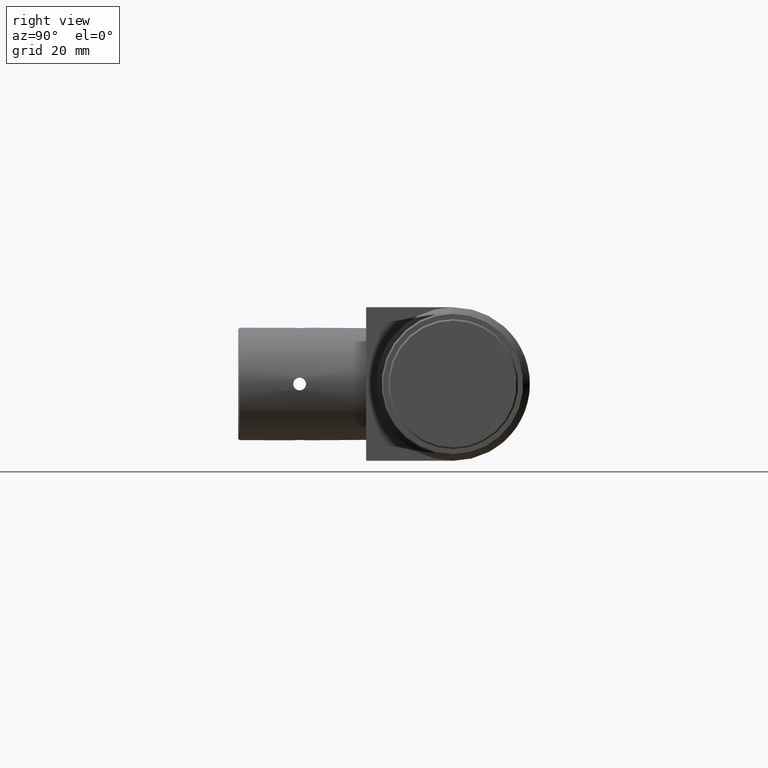
[diagram: clean part render]
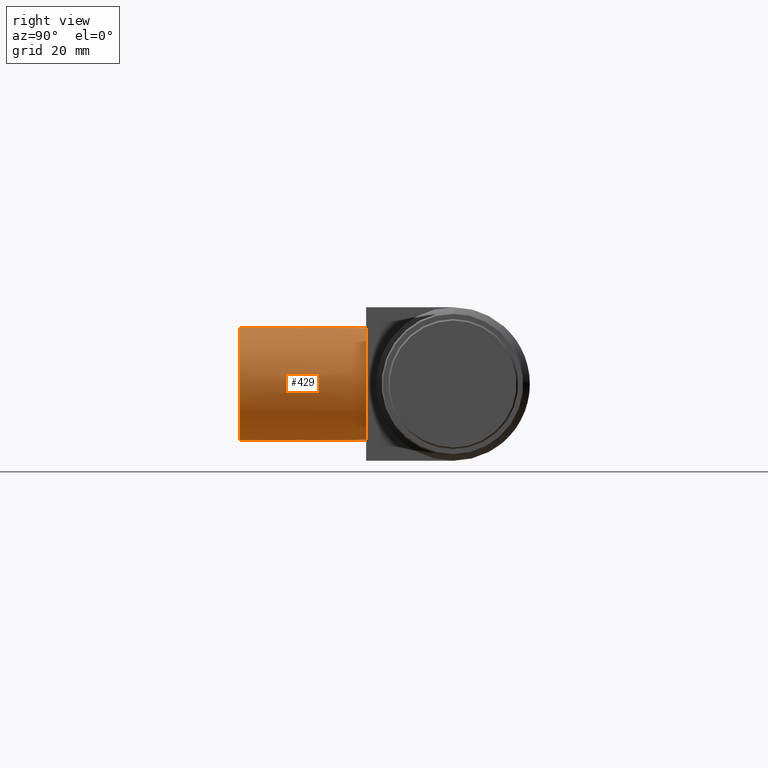
[diagram: same view with one face highlighted and labeled with its STEP entity id]
A machine part, right view. The second image highlights one B-rep face of the part: STEP entity #429.
In plain terms, the highlighted cylindrical surface (bore or boss wall) has radius 11 mm, axis along (-0, 1, 0).
Its self-contained STEP definition (entity closure, byte-faithful):
#8 = CARTESIAN_POINT ( 'NONE',  ( 57.32874691992438443, -30.16523649861752432, -1.249996304105803313 ) ) ;
#18 = CARTESIAN_POINT ( 'NONE',  ( 47.65000000000001279, -30.00000000000000711, -10.92874649719719038 ) ) ;
#31 = CARTESIAN_POINT ( 'NONE',  ( 57.35512509670665082, -30.76840601447571188, -0.9992852210899698662 ) ) ;
#38 = CARTESIAN_POINT ( 'NONE',  ( 57.37369036873785433, -30.99878037001180431, -0.7690621097481870061 ) ) ;
#39 = CARTESIAN_POINT ( 'NONE',  ( 47.49191374778500574, -29.36987058394471362, -10.94585336944215470 ) ) ;
#51 = VERTEX_POINT ( 'NONE', #998 ) ;
#53 = CARTESIAN_POINT ( 'NONE',  ( 47.16866174508813003, -29.00089940282909495, -10.97371939403145191 ) ) ;
#67 = CARTESIAN_POINT ( 'NONE',  ( 35.47125392545656553, -30.16518057563349231, -1.250003695269235937 ) ) ;
#68 = CARTESIAN_POINT ( 'NONE',  ( 45.99813204940214462, -28.81352911131221006, -10.99291791976997246 ) ) ;
#73 = CARTESIAN_POINT ( 'NONE',  ( 35.40382933267786569, -31.21743884811908742, -0.3273496826802421156 ) ) ;
#74 = CARTESIAN_POINT ( 'NONE',  ( 47.40003137385470922, -30.76788954005089138, -10.95507426899692938 ) ) ;
#80 = CARTESIAN_POINT ( 'NONE',  ( 45.30828834823177687, -29.36952018964126054, -10.94587381075847077 ) ) ;
#88 = CARTESIAN_POINT ( 'NONE',  ( 45.30808752390574057, -29.36986847184140714, 10.94585349747341851 ) ) ;
#107 = EDGE_LOOP ( 'NONE', ( #702 ) ) ;
#120 = CARTESIAN_POINT ( 'NONE',  ( 57.37369157730482527, -29.00120630925291110, 0.7690454277273465200 ) ) ;
#126 = CARTESIAN_POINT ( 'NONE',  ( 57.39999999999997016, -31.25000000000000711, 1.382357769919018153E-15 ) ) ;
#132 = CARTESIAN_POINT ( 'NONE',  ( 47.61731150413277902, -29.67214067730426308, 10.93261819251236489 ) ) ;
#136 = EDGE_LOOP ( 'NONE', ( #399 ) ) ;
#138 = CARTESIAN_POINT ( 'NONE',  ( 45.77066527709941823, -28.90778430875120364, 10.98301358786107151 ) ) ;
#147 = CARTESIAN_POINT ( 'NONE',  ( 35.39999944251255215, -31.25000490588956836, 0.1651726352096185291 ) ) ;
#157 = CARTESIAN_POINT ( 'NONE',  ( 35.46739675995540608, -30.32734344424192585, 1.217440567082311409 ) ) ;
#164 = CARTESIAN_POINT ( 'NONE',  ( 35.40000055761273501, -31.24999509300798195, -0.1652468808359598140 ) ) ;
#165 = CARTESIAN_POINT ( 'NONE',  ( 46.56356424380434333, -31.24194578641280984, -10.99907625233640118 ) ) ;
#171 = CARTESIAN_POINT ( 'NONE',  ( 47.02933581457664758, -28.90778489191913181, -10.98301352857973257 ) ) ;
#180 = CARTESIAN_POINT ( 'NONE',  ( 46.48068588888168762, -31.25005821771271286, -11.00000661564748405 ) ) ;
#185 = CARTESIAN_POINT ( 'NONE',  ( 45.15000049632214285, -29.83470918015473572, 10.92874655396517447 ) ) ;
#204 = CARTESIAN_POINT ( 'NONE',  ( 57.37373593884807121, -29.00072740950901462, -0.7684227986129689159 ) ) ;
#219 = CARTESIAN_POINT ( 'NONE',  ( 57.33267669630473762, -29.67067927638482061, -1.216766291996357552 ) ) ;
#223 = CARTESIAN_POINT ( 'NONE',  ( 46.80186721714293441, -28.81352887404932872, 10.99291794571075265 ) ) ;
#233 = CARTESIAN_POINT ( 'NONE',  ( 35.41701718177204583, -28.90809088857670162, -0.6298465923763797436 ) ) ;
#244 = VERTEX_POINT ( 'NONE', #630 ) ;
#245 = CARTESIAN_POINT ( 'NONE',  ( 35.46732315259926338, -29.67067319058544683, 1.216765051851185442 ) ) ;
#255 = CARTESIAN_POINT ( 'NONE',  ( 46.31931395672849305, -31.25005821782326265, 11.00000661566004290 ) ) ;
#260 = CARTESIAN_POINT ( 'NONE',  ( 35.45414928931290888, -30.62982551053984182, -1.091921322538428774 ) ) ;
#261 = CARTESIAN_POINT ( 'NONE',  ( 46.07607919561785081, -31.21006526087888489, 10.99552213412518320 ) ) ;
#263 = EDGE_CURVE ( 'NONE', #694, #694, #269, .T. ) ;
#265 = DIRECTION ( 'NONE',  ( -1.000000000000000000, -1.306036860466260568E-16, 0.000000000000000000 ) ) ;
#268 = CARTESIAN_POINT ( 'NONE',  ( 45.18258419316644137, -30.32747114605952632, -10.93260629478959878 ) ) ;
#269 = B_SPLINE_CURVE_WITH_KNOTS ( 'NONE', 3,
 ( #632, #792, #525, #39, #420, #53, #171, #1017, #1037, #1124, #848, #555, #68, #449, #841, #931, #80, #548, #730, #468, #268, #652, #1230, #639, #1023, #455, #833, #180, #165, #1117, #659, #378, #569, #74, #1110, #1215, #363, #922 ),
 .UNSPECIFIED., .T., .F.,
 ( 4, 2, 2, 2, 2, 2, 2, 2, 2, 2, 2, 2, 2, 2, 2, 2, 2, 2, 4 ),
 ( 0.000000000000000000, 0.0004887933009349074804, 0.0009775866018698149609, 0.001466379902804722333, 0.001955173203739629922, 0.002199569854207094124, 0.002443966504674557894, 0.002932759805609508851, 0.003421553106544459807, 0.003910346407479410764, 0.004399139708414361721, 0.004887933009349311811, 0.005376726310284262768, 0.005865519611219213725, 0.006109916261686679229, 0.006354312912154144732, 0.006843106213089089618, 0.007331899514024035371, 0.007820692814958981123 ),
 .UNSPECIFIED. ) ;
#273 = AXIS2_PLACEMENT_3D ( 'NONE', #1026, #1045, #947 ) ;
#277 = CARTESIAN_POINT ( 'NONE',  ( 45.14999950368910930, -30.16528331295861776, 10.92874644043053323 ) ) ;
#282 = EDGE_CURVE ( 'NONE', #970, #970, #992, .T. ) ;
#285 = CARTESIAN_POINT ( 'NONE',  ( 57.38299523624985454, -31.09204950158702019, 0.6298763293659139784 ) ) ;
#329 = CARTESIAN_POINT ( 'NONE',  ( 57.39609704690399639, -31.21675970801556588, -0.3293448807668990508 ) ) ;
#333 = CARTESIAN_POINT ( 'NONE',  ( 46.23593742171766507, -28.75011740081319545, 10.99998665900188755 ) ) ;
#335 = CARTESIAN_POINT ( 'NONE',  ( 46.40000000000000568, -41.69999999999992468, 0.000000000000000000 ) ) ;
#337 = ORIENTED_EDGE ( 'NONE', *, *, #964, .T. ) ;
#344 = CARTESIAN_POINT ( 'NONE',  ( 35.40000000000000568, -28.75000000000001066, -4.201283418381329682E-16 ) ) ;
#348 = CARTESIAN_POINT ( 'NONE',  ( 46.48068588888168762, -28.74994178228730846, 11.00000661564748405 ) ) ;
#351 = CARTESIAN_POINT ( 'NONE',  ( 45.99813204940214462, -31.18647088868779349, 10.99291791976997246 ) ) ;
#356 = CARTESIAN_POINT ( 'NONE',  ( 35.46739691633692360, -29.67266281084246060, -1.217441855151542685 ) ) ;
#357 = CARTESIAN_POINT ( 'NONE',  ( 46.56406288705149876, -31.24988259896575116, 10.99998665897675920 ) ) ;
#362 = CARTESIAN_POINT ( 'NONE',  ( 35.42630963126215704, -29.00121962998827030, -0.7690621097481721291 ) ) ;
#363 = CARTESIAN_POINT ( 'NONE',  ( 47.65000000000001279, -30.16528746445562348, -10.92874649719719038 ) ) ;
#364 = ORIENTED_EDGE ( 'NONE', *, *, #499, .T. ) ;
#366 = FACE_OUTER_BOUND ( 'NONE', #1132, .T. ) ;
#369 = CARTESIAN_POINT ( 'NONE',  ( 45.63343297007446608, -31.00104553956278508, 10.97388217454267334 ) ) ;
#377 = CARTESIAN_POINT ( 'NONE',  ( 35.40390295309596524, -28.78324029198446610, -0.3293448807668986622 ) ) ;
#378 = CARTESIAN_POINT ( 'NONE',  ( 47.02898520207009625, -31.09257566662105532, -10.98304814252178296 ) ) ;
#380 = CARTESIAN_POINT ( 'NONE',  ( 57.39617162639941483, -31.21744740817014119, 0.3273195877911221352 ) ) ;
#381 = FACE_BOUND ( 'NONE', #107, .T. ) ;
#389 = CARTESIAN_POINT ( 'NONE',  ( 57.35517055045421841, -29.23095705966396451, -0.9987954062039354763 ) ) ;
#399 = ORIENTED_EDGE ( 'NONE', *, *, #799, .T. ) ;
#417 = CARTESIAN_POINT ( 'NONE',  ( 46.72392020599223628, -28.78993458921027226, 10.99552215070806405 ) ) ;
#419 = CARTESIAN_POINT ( 'NONE',  ( 57.33260308366308067, -30.32733718915765309, -1.217441855151598196 ) ) ;
#420 = CARTESIAN_POINT ( 'NONE',  ( 47.39906983466250523, -29.23129827169660899, -10.95514571709438023 ) ) ;
#427 = CARTESIAN_POINT ( 'NONE',  ( 35.47125308006242506, -30.16523959252310050, 1.249996303990653645 ) ) ;
#429 = ADVANCED_FACE ( 'NONE', ( #667, #366, #381, #753, #830, #940 ), #479, .T. ) ;
#440 = CARTESIAN_POINT ( 'NONE',  ( 35.42626283799706499, -29.00071391413631972, 0.7684059227246118340 ) ) ;
#449 = CARTESIAN_POINT ( 'NONE',  ( 45.77101368605902820, -28.90742492497764005, -10.98304808233786112 ) ) ;
#454 = DIRECTION ( 'NONE',  ( -1.000000000000000000, 0.000000000000000000, 0.000000000000000000 ) ) ;
#455 = CARTESIAN_POINT ( 'NONE',  ( 46.07137590103997837, -31.21696487674919140, -10.99612003691174600 ) ) ;
#462 = CARTESIAN_POINT ( 'NONE',  ( 45.77101368605902820, -31.09257507502235995, 10.98304808233786112 ) ) ;
#463 = ORIENTED_EDGE ( 'NONE', *, *, #263, .T. ) ;
#468 = CARTESIAN_POINT ( 'NONE',  ( 45.15000049632214285, -30.16529081984527849, -10.92874655396517447 ) ) ;
#471 = CARTESIAN_POINT ( 'NONE',  ( 57.39999999999997016, -31.25000000000000711, 1.382357769919018153E-15 ) ) ;
#479 = CYLINDRICAL_SURFACE ( 'NONE', #532, 10.99999999999999645 ) ;
#497 = CARTESIAN_POINT ( 'NONE',  ( 47.65000000000001279, -30.00000000000000711, 10.92874649719719038 ) ) ;
#499 = EDGE_CURVE ( 'NONE', #51, #51, #1106, .T. ) ;
#503 = CARTESIAN_POINT ( 'NONE',  ( 57.35512597401045554, -29.23158142311362084, 0.9992760365786943488 ) ) ;
#510 = CARTESIAN_POINT ( 'NONE',  ( 57.33267684740076220, -30.32932680941448922, 1.216765051851130597 ) ) ;
#525 = CARTESIAN_POINT ( 'NONE',  ( 47.61741667264296041, -29.67253189658991275, -10.93260619720206961 ) ) ;
#532 = AXIS2_PLACEMENT_3D ( 'NONE', #746, #1121, #265 ) ;
#542 = EDGE_LOOP ( 'NONE', ( #820 ) ) ;
#545 = CARTESIAN_POINT ( 'NONE',  ( 47.02898520207009625, -28.90742433337894468, 10.98304814252178296 ) ) ;
#547 = CARTESIAN_POINT ( 'NONE',  ( 35.42626406115194015, -30.99927259049104578, -0.7684227986128288057 ) ) ;
#548 = CARTESIAN_POINT ( 'NONE',  ( 45.18268766072333165, -29.67214364346363098, -10.93261809816383412 ) ) ;
#552 = CARTESIAN_POINT ( 'NONE',  ( 35.40000000000000568, -41.69999999999992468, 0.000000000000000000 ) ) ;
#553 = CARTESIAN_POINT ( 'NONE',  ( 35.39999999999999147, -28.75000000000000000, 0.1652136944384992867 ) ) ;
#555 = CARTESIAN_POINT ( 'NONE',  ( 46.07607919561785081, -28.78993473912112577, -10.99552213412518320 ) ) ;
#562 = CARTESIAN_POINT ( 'NONE',  ( 47.02933581457664758, -31.09221510808088951, 10.98301352857973257 ) ) ;
#569 = CARTESIAN_POINT ( 'NONE',  ( 47.16656572116210810, -31.00104649719810723, -10.97388226577411352 ) ) ;
#606 = CARTESIAN_POINT ( 'NONE',  ( 57.34583990201087289, -30.62988142609513886, -1.092045647004250108 ) ) ;
#609 = CARTESIAN_POINT ( 'NONE',  ( 45.63133950611568679, -29.00089849263703456, 10.97371948106033912 ) ) ;
#611 = CARTESIAN_POINT ( 'NONE',  ( 57.39999944238726926, -28.75000490699203937, -0.1652468808361131358 ) ) ;
#630 = CARTESIAN_POINT ( 'NONE',  ( 35.47125350280281708, -30.00000000000001066, 1.250000000000035971 ) ) ;
#632 = CARTESIAN_POINT ( 'NONE',  ( 47.65000000000001279, -30.00000000000000355, -10.92874649719719216 ) ) ;
#636 = CARTESIAN_POINT ( 'NONE',  ( 47.65000000000001279, -30.00000000000000711, 10.92874649719719216 ) ) ;
#637 = CARTESIAN_POINT ( 'NONE',  ( 57.32874649719720139, -30.00000000000000711, 1.249999999999959588 ) ) ;
#638 = CARTESIAN_POINT ( 'NONE',  ( 35.44487402598955583, -30.76841857688634718, 0.9992760365788175836 ) ) ;
#639 = CARTESIAN_POINT ( 'NONE',  ( 45.63133950611568679, -30.99910150736295478, -10.97371948106033912 ) ) ;
#645 = CARTESIAN_POINT ( 'NONE',  ( 35.44487490329336765, -29.23159398552438759, -0.9992852210899410004 ) ) ;
#646 = CARTESIAN_POINT ( 'NONE',  ( 45.18268766072333165, -30.32785635653636902, 10.93261809816383412 ) ) ;
#652 = CARTESIAN_POINT ( 'NONE',  ( 45.30808752390574057, -30.63013152815860352, -10.94585349747341851 ) ) ;
#659 = CARTESIAN_POINT ( 'NONE',  ( 46.80186721714293441, -31.18647112595072102, -10.99291794571075265 ) ) ;
#667 = FACE_BOUND ( 'NONE', #136, .T. ) ;
#679 = CARTESIAN_POINT ( 'NONE',  ( 57.34584048924931921, -29.37010783276489079, 1.092039890535843494 ) ) ;
#692 = EDGE_LOOP ( 'NONE', ( #463 ) ) ;
#694 = VERTEX_POINT ( 'NONE', #18 ) ;
#695 = CARTESIAN_POINT ( 'NONE',  ( 57.34585129962768946, -30.62983630513600630, 1.091915549636537586 ) ) ;
#699 = CARTESIAN_POINT ( 'NONE',  ( 57.34585071068710249, -29.37017448946025766, -1.091921322538544681 ) ) ;
#702 = ORIENTED_EDGE ( 'NONE', *, *, #975, .T. ) ;
#709 = CARTESIAN_POINT ( 'NONE',  ( 57.39617066732216699, -28.78256115188095876, -0.3273496826803982684 ) ) ;
#713 = CARTESIAN_POINT ( 'NONE',  ( 47.40003137385470922, -29.23211045994909441, 10.95507426899692938 ) ) ;
#718 = CARTESIAN_POINT ( 'NONE',  ( 47.49171034774104072, -29.36951800167836168, 10.94587394217481169 ) ) ;
#721 = CARTESIAN_POINT ( 'NONE',  ( 35.41700476375014262, -28.90795049841296205, 0.6298763293659227491 ) ) ;
#725 = CARTESIAN_POINT ( 'NONE',  ( 46.56356424380434333, -28.75805421358721503, 10.99907625233640118 ) ) ;
#729 = CARTESIAN_POINT ( 'NONE',  ( 35.45415951075069216, -30.62989216723504526, 1.092039890535957847 ) ) ;
#730 = CARTESIAN_POINT ( 'NONE',  ( 45.14999950368910930, -29.83471668704137869, -10.92874644043053323 ) ) ;
#735 = CARTESIAN_POINT ( 'NONE',  ( 35.45416009798911716, -29.37011857390493219, -1.092045647004212805 ) ) ;
#736 = CARTESIAN_POINT ( 'NONE',  ( 47.49191374778500574, -30.63012941605528283, 10.94585336944215470 ) ) ;
#740 = CARTESIAN_POINT ( 'NONE',  ( 35.47125392546973899, -29.83481633115599507, 1.250003695384427793 ) ) ;
#741 = CARTESIAN_POINT ( 'NONE',  ( 47.65000000000001279, -30.16528746445560927, 10.92874649719719216 ) ) ;
#746 = CARTESIAN_POINT ( 'NONE',  ( 46.39999999999999858, -2.571758278209440478E-15, 0.000000000000000000 ) ) ;
#749 = CARTESIAN_POINT ( 'NONE',  ( 45.39996728406128312, -30.76788785033986784, 10.95507414667589074 ) ) ;
#753 = FACE_OUTER_BOUND ( 'NONE', #1054, .T. ) ;
#762 = CARTESIAN_POINT ( 'NONE',  ( 57.33260324004462660, -29.67265655575801375, 1.217440567082215042 ) ) ;
#765 = CARTESIAN_POINT ( 'NONE',  ( 35.40000000000001990, -28.75000000000001776, -0.1652136944384998696 ) ) ;
#767 = CARTESIAN_POINT ( 'NONE',  ( 57.40000055748745922, -28.74999509411043874, 0.1651726352094579631 ) ) ;
#780 = B_SPLINE_CURVE_WITH_KNOTS ( 'NONE', 3,
 ( #471, #852, #380, #285, #1044, #919, #695, #510, #1072, #1179, #762, #679, #503, #120, #978, #1144, #767, #611, #709, #895, #204, #389, #699, #219, #1078, #8, #419, #606, #31, #38, #986, #329, #1087, #126 ),
 .UNSPECIFIED., .T., .F.,
 ( 4, 2, 2, 2, 2, 2, 2, 2, 2, 2, 2, 2, 2, 2, 2, 2, 4 ),
 ( -0.001954256118745981066, -0.001465685198243444221, -0.0009771142777409071601, -0.0004885433572383703158, 2.756326416674531599E-08, 0.0004885984837667035896, 0.0009771694042692404339, 0.001465740324771778146, 0.001954311245274315424, 0.002442882165776853135, 0.002931453086279390847, 0.003420024006781928558, 0.003908594927284465836, 0.004397165847787003548, 0.004885736768289542994, 0.005374307688792078971, 0.005862878609294616683 ),
 .UNSPECIFIED. ) ;
#781 = AXIS2_PLACEMENT_3D ( 'NONE', #335, #1010, #454 ) ;
#792 = CARTESIAN_POINT ( 'NONE',  ( 47.65000000000001279, -29.83471253554439784, -10.92874649719719216 ) ) ;
#799 = EDGE_CURVE ( 'NONE', #1192, #1192, #780, .T. ) ;
#820 = ORIENTED_EDGE ( 'NONE', *, *, #282, .T. ) ;
#825 = CARTESIAN_POINT ( 'NONE',  ( 35.40382837360061785, -28.78255259182985881, 0.3273195877911224683 ) ) ;
#826 = CARTESIAN_POINT ( 'NONE',  ( 47.65000000000001279, -30.00000000000000711, 10.92874649719719216 ) ) ;
#830 = FACE_BOUND ( 'NONE', #542, .T. ) ;
#832 = CARTESIAN_POINT ( 'NONE',  ( 35.41700602522696784, -31.09203692883270875, -0.6298972215576134071 ) ) ;
#833 = CARTESIAN_POINT ( 'NONE',  ( 46.23593742171766507, -31.24988259918683653, -10.99998665900188755 ) ) ;
#841 = CARTESIAN_POINT ( 'NONE',  ( 45.63343297007446608, -28.99895446043721137, -10.97388217454267334 ) ) ;
#848 = CARTESIAN_POINT ( 'NONE',  ( 46.23643544421193496, -28.75805424466794946, -10.99907624874190226 ) ) ;
#852 = CARTESIAN_POINT ( 'NONE',  ( 57.39999999999997016, -31.25000000000000711, 0.1652136944385006190 ) ) ;
#895 = CARTESIAN_POINT ( 'NONE',  ( 57.38299397477301511, -28.90796307116735520, -0.6298972215577562928 ) ) ;
#919 = CARTESIAN_POINT ( 'NONE',  ( 57.35517141310676692, -30.76905531090329049, 0.9987863997123537230 ) ) ;
#921 = CARTESIAN_POINT ( 'NONE',  ( 35.46732330369524533, -30.32932072361527176, -1.216766291996261184 ) ) ;
#922 = CARTESIAN_POINT ( 'NONE',  ( 47.65000000000001279, -30.00000000000000355, -10.92874649719719216 ) ) ;
#931 = CARTESIAN_POINT ( 'NONE',  ( 45.39996728406128312, -29.23211214966016058, -10.95507414667589074 ) ) ;
#937 = CARTESIAN_POINT ( 'NONE',  ( 46.72862471446021004, -31.21696475169781593, 10.99612002178587744 ) ) ;
#940 = FACE_BOUND ( 'NONE', #692, .T. ) ;
#943 = CARTESIAN_POINT ( 'NONE',  ( 45.18258419316644137, -29.67252885394049855, 10.93260629478959878 ) ) ;
#947 = DIRECTION ( 'NONE',  ( -1.000000000000000000, 0.000000000000000000, 0.000000000000000000 ) ) ;
#949 = CARTESIAN_POINT ( 'NONE',  ( 35.40000000000000568, -28.75000000000001066, -4.201283418381329682E-16 ) ) ;
#964 = EDGE_CURVE ( 'NONE', #1015, #1015, #1065, .T. ) ;
#970 = VERTEX_POINT ( 'NONE', #497 ) ;
#975 = EDGE_CURVE ( 'NONE', #244, #244, #1147, .T. ) ;
#978 = CARTESIAN_POINT ( 'NONE',  ( 57.38298408724662636, -28.90807824463663067, 0.6298254614847923483 ) ) ;
#986 = CARTESIAN_POINT ( 'NONE',  ( 57.38298281822795843, -31.09190911142337299, -0.6298465923763884033 ) ) ;
#990 = CARTESIAN_POINT ( 'NONE',  ( 46.07137590103997837, -28.78303512325081570, 10.99612003691174600 ) ) ;
#992 = B_SPLINE_CURVE_WITH_KNOTS ( 'NONE', 3,
 ( #826, #741, #1221, #736, #1209, #1031, #562, #937, #357, #255, #1201, #261, #351, #462, #369, #749, #1131, #646, #277, #185, #943, #88, #1092, #609, #138, #990, #333, #348, #725, #417, #223, #545, #1108, #713, #718, #132, #1085, #636 ),
 .UNSPECIFIED., .T., .F.,
 ( 4, 2, 2, 2, 2, 2, 2, 2, 2, 2, 2, 2, 2, 2, 2, 2, 2, 2, 4 ),
 ( 0.000000000000000000, 0.0004887933009349074804, 0.0009775866018698149609, 0.001466379902804722333, 0.001955173203739629922, 0.002199569854207094124, 0.002443966504674557894, 0.002932759805609508851, 0.003421553106544459807, 0.003910346407479410764, 0.004399139708414361721, 0.004887933009349311811, 0.005376726310284262768, 0.005865519611219213725, 0.006109916261686679229, 0.006354312912154144732, 0.006843106213089089618, 0.007331899514024035371, 0.007820692814958981123 ),
 .UNSPECIFIED. ) ;
#998 = CARTESIAN_POINT ( 'NONE',  ( 35.39999999999999858, -17.00000000000000000, 0.000000000000000000 ) ) ;
#1000 = CARTESIAN_POINT ( 'NONE',  ( 35.41701591275340633, -31.09192175536336578, 0.6298254614849356781 ) ) ;
#1010 = DIRECTION ( 'NONE',  ( -1.306036860466260815E-16, 1.000000000000000000, 0.000000000000000000 ) ) ;
#1015 = VERTEX_POINT ( 'NONE', #552 ) ;
#1016 = CARTESIAN_POINT ( 'NONE',  ( 35.42630842269518610, -30.99879369074706403, 0.7690454277274827444 ) ) ;
#1017 = CARTESIAN_POINT ( 'NONE',  ( 46.72862471446021004, -28.78303524830217697, -10.99612002178587744 ) ) ;
#1022 = CARTESIAN_POINT ( 'NONE',  ( 35.40390201203418741, -31.21676810447575434, 0.3293153681518554143 ) ) ;
#1023 = CARTESIAN_POINT ( 'NONE',  ( 45.77066527709941823, -31.09221569124881057, -10.98301358786107151 ) ) ;
#1026 = CARTESIAN_POINT ( 'NONE',  ( 46.39999999999999858, -17.00000000000000000, 0.000000000000000000 ) ) ;
#1031 = CARTESIAN_POINT ( 'NONE',  ( 47.16866174508813003, -30.99910059717090860, 10.97371939403145191 ) ) ;
#1037 = CARTESIAN_POINT ( 'NONE',  ( 46.56406288705149876, -28.75011740103427726, -10.99998665897675920 ) ) ;
#1044 = CARTESIAN_POINT ( 'NONE',  ( 57.37373716200294638, -30.99928608586365542, 0.7684059227245985113 ) ) ;
#1045 = DIRECTION ( 'NONE',  ( 1.306036860466260815E-16, -1.000000000000000000, -0.000000000000000000 ) ) ;
#1054 = EDGE_LOOP ( 'NONE', ( #337 ) ) ;
#1065 = CIRCLE ( 'NONE', #781, 10.99999999999999645 ) ;
#1072 = CARTESIAN_POINT ( 'NONE',  ( 57.32874607453027949, -30.16518366884393387, 1.250003695384362290 ) ) ;
#1078 = CARTESIAN_POINT ( 'NONE',  ( 57.32874607454344584, -29.83481942436661072, -1.250003695269321646 ) ) ;
#1085 = CARTESIAN_POINT ( 'NONE',  ( 47.65000000000001279, -29.83471253554438718, 10.92874649719719038 ) ) ;
#1087 = CARTESIAN_POINT ( 'NONE',  ( 57.39999999999997016, -31.25000000000000711, -0.1652136944384978434 ) ) ;
#1092 = CARTESIAN_POINT ( 'NONE',  ( 45.40093153025377148, -29.23129656587713043, 10.95514584095623256 ) ) ;
#1101 = CARTESIAN_POINT ( 'NONE',  ( 35.45414870037235744, -29.37016369486395462, 1.091915549636573557 ) ) ;
#1106 = CIRCLE ( 'NONE', #273, 10.99999999999999645 ) ;
#1108 = CARTESIAN_POINT ( 'NONE',  ( 47.16656572116210810, -28.99895350280189987, 10.97388226577411352 ) ) ;
#1110 = CARTESIAN_POINT ( 'NONE',  ( 47.49171034774104072, -30.63048199832165608, -10.94587394217481169 ) ) ;
#1117 = CARTESIAN_POINT ( 'NONE',  ( 46.72392020599223628, -31.21006541078973484, -10.99552215070806405 ) ) ;
#1121 = DIRECTION ( 'NONE',  ( -1.306036860466260815E-16, 1.000000000000000000, 0.000000000000000000 ) ) ;
#1124 = CARTESIAN_POINT ( 'NONE',  ( 46.31931395672849305, -28.74994178217674445, -11.00000661566004290 ) ) ;
#1131 = CARTESIAN_POINT ( 'NONE',  ( 45.30828834823177687, -30.63047981035876788, 10.94587381075847077 ) ) ;
#1132 = EDGE_LOOP ( 'NONE', ( #364 ) ) ;
#1144 = CARTESIAN_POINT ( 'NONE',  ( 57.39609798796580264, -28.78323189552423855, 0.3293153681517041464 ) ) ;
#1147 = B_SPLINE_CURVE_WITH_KNOTS ( 'NONE', 3,
 ( #344, #553, #825, #721, #440, #1200, #1101, #245, #740, #427, #157, #729, #638, #1016, #1000, #1022, #147, #164, #73, #832, #547, #1214, #260, #921, #67, #1208, #356, #735, #645, #362, #233, #377, #765, #949 ),
 .UNSPECIFIED., .T., .F.,
 ( 4, 2, 2, 2, 2, 2, 2, 2, 2, 2, 2, 2, 2, 2, 2, 2, 4 ),
 ( -0.001954256118746058694, -0.001465685198243520983, -0.0009771142777409834879, -0.0004885433572384462100, 2.756326409128484478E-08, 0.0004885984837666281291, 0.0009771694042691658408, 0.001465740324771703552, 0.001954311245274241264, 0.002442882165776778976, 0.002931453086279316687, 0.003420024006781853532, 0.003908594927284391243, 0.004397165847786929822, 0.004885736768289467534, 0.005374307688792004378, 0.005862878609294541223 ),
 .UNSPECIFIED. ) ;
#1179 = CARTESIAN_POINT ( 'NONE',  ( 57.32874691993757921, -29.83476040747683555, 1.249996303990566604 ) ) ;
#1192 = VERTEX_POINT ( 'NONE', #637 ) ;
#1200 = CARTESIAN_POINT ( 'NONE',  ( 35.44482858689322313, -29.23094468909665267, 0.9987863997123814785 ) ) ;
#1201 = CARTESIAN_POINT ( 'NONE',  ( 46.23643544421193496, -31.24194575533205764, 10.99907624874190226 ) ) ;
#1208 = CARTESIAN_POINT ( 'NONE',  ( 35.47125308007559141, -29.83476350138256095, -1.249996304105736256 ) ) ;
#1209 = CARTESIAN_POINT ( 'NONE',  ( 47.39906983466250523, -30.76870172830340522, 10.95514571709438023 ) ) ;
#1214 = CARTESIAN_POINT ( 'NONE',  ( 35.44482944954575743, -30.76904294033611009, -0.9987954062038127967 ) ) ;
#1215 = CARTESIAN_POINT ( 'NONE',  ( 47.61731150413277902, -30.32785932269573692, -10.93261819251236489 ) ) ;
#1221 = CARTESIAN_POINT ( 'NONE',  ( 47.61741667264296041, -30.32746810341011567, 10.93260619720206961 ) ) ;
#1230 = CARTESIAN_POINT ( 'NONE',  ( 45.40093153025377148, -30.76870343412286957, -10.95514584095623256 ) ) ;